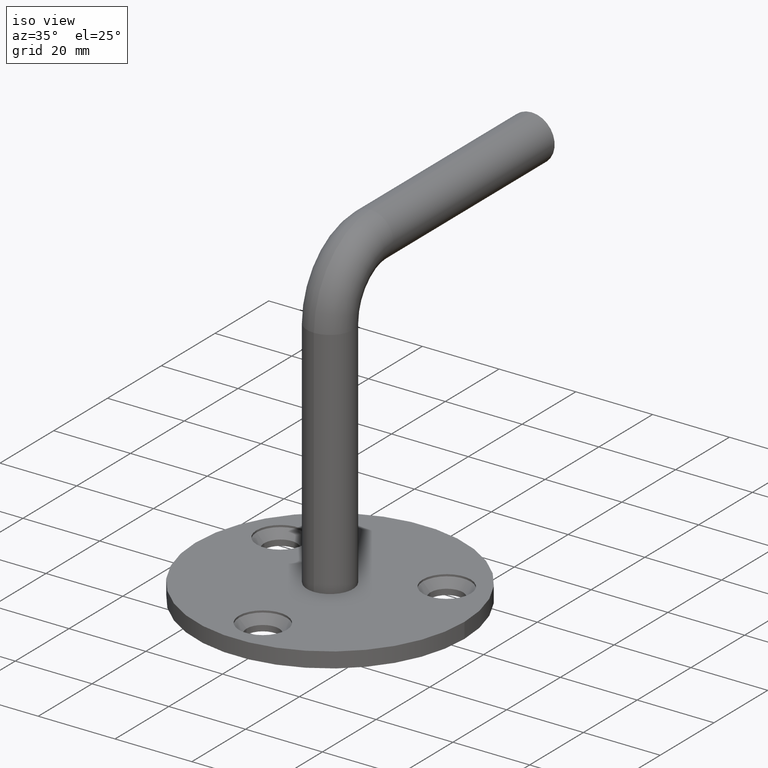
[diagram: clean part render]
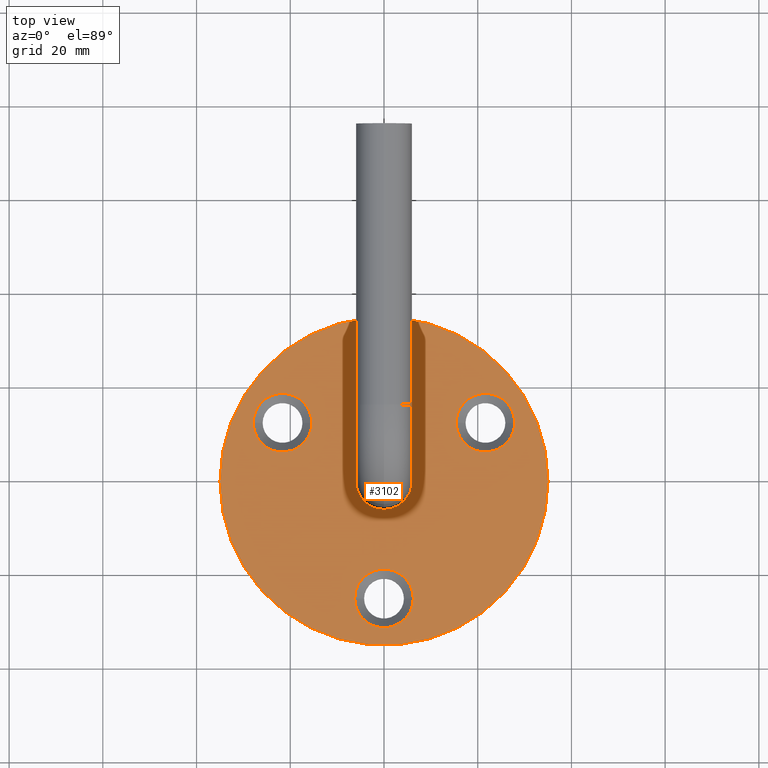
[diagram: tour spotlight — one face highlighted and labeled with its STEP entity id]
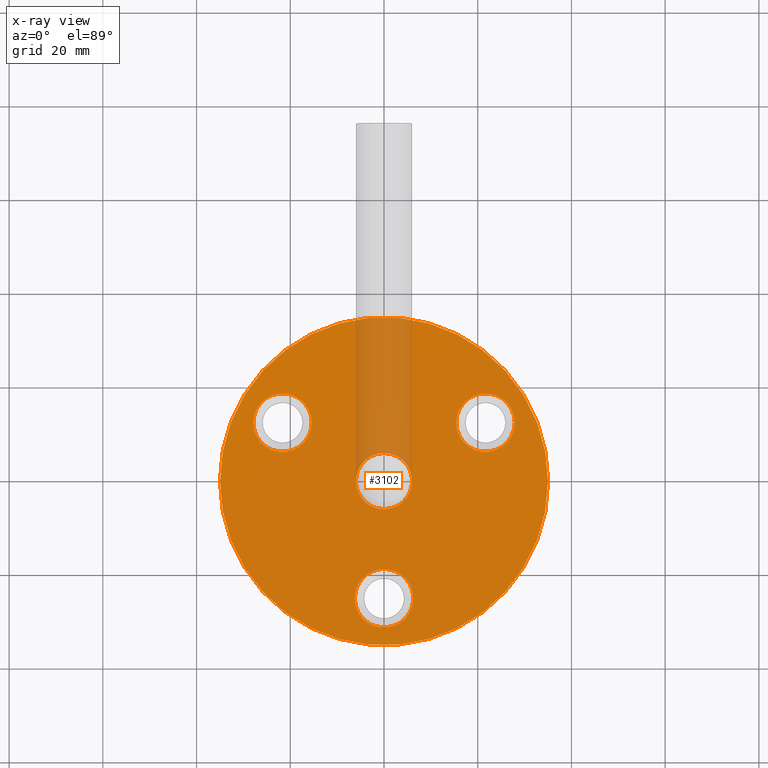
[diagram: x-ray of the same camera — body ghosted, this tour face saturated]
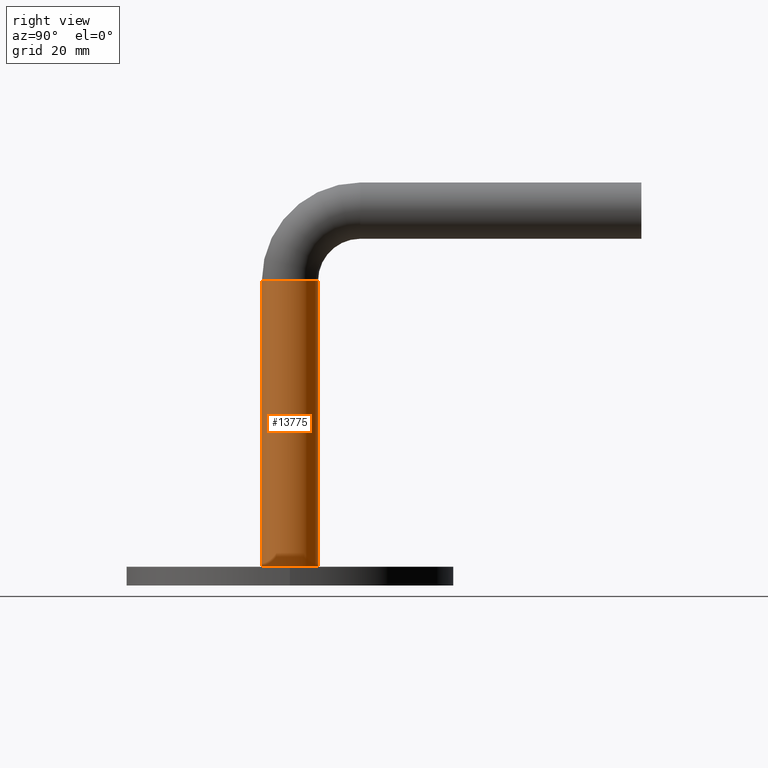
[diagram: tour spotlight — one face highlighted and labeled with its STEP entity id]
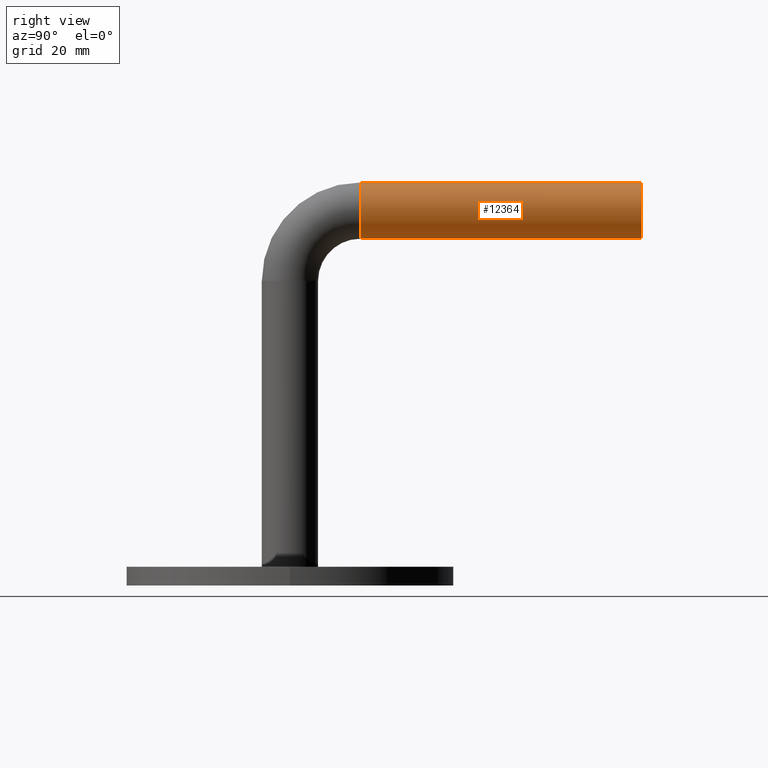
[diagram: tour spotlight — one face highlighted and labeled with its STEP entity id]
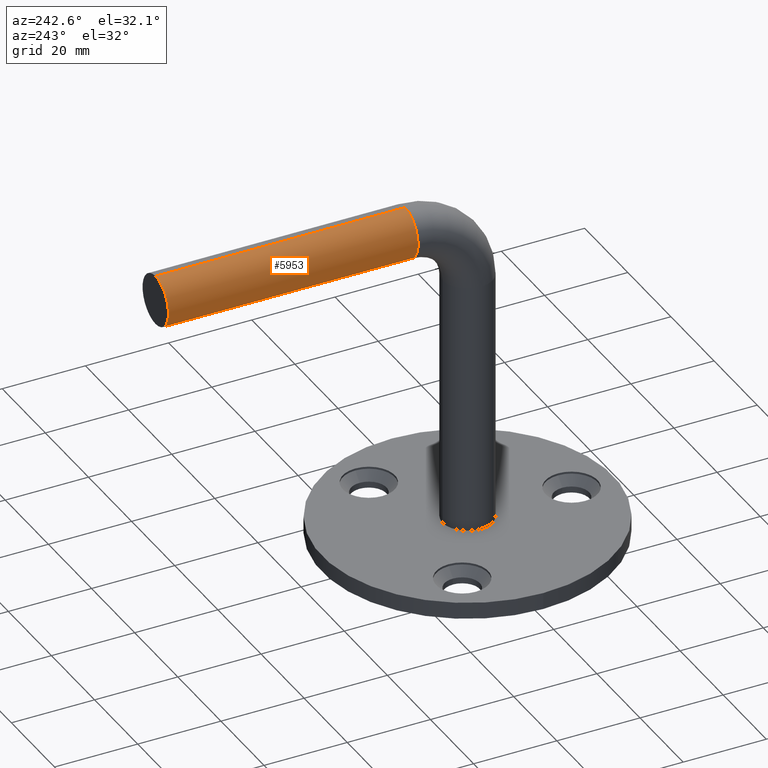
[diagram: tour spotlight — one face highlighted and labeled with its STEP entity id]
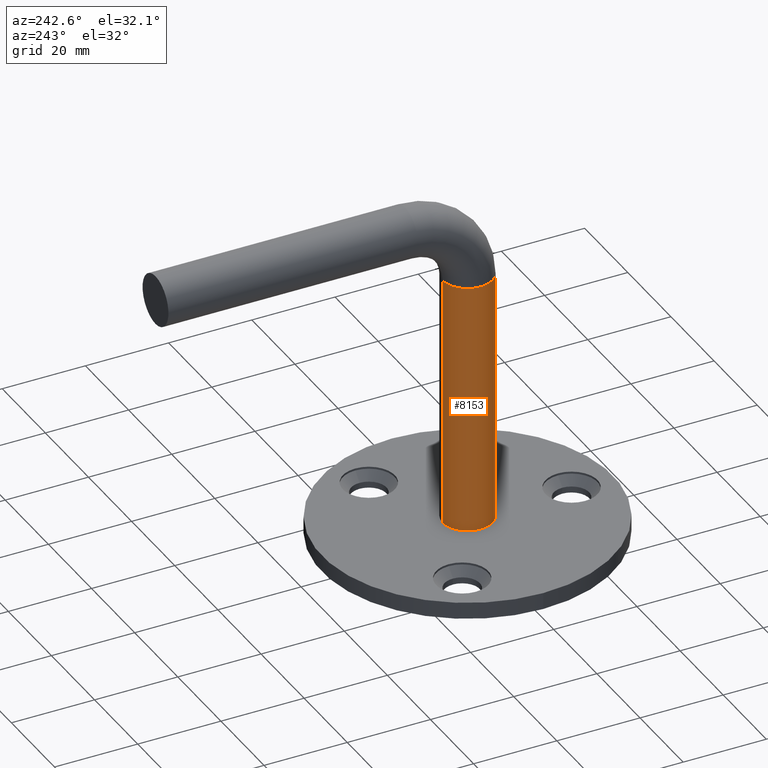
[diagram: tour spotlight — one face highlighted and labeled with its STEP entity id]
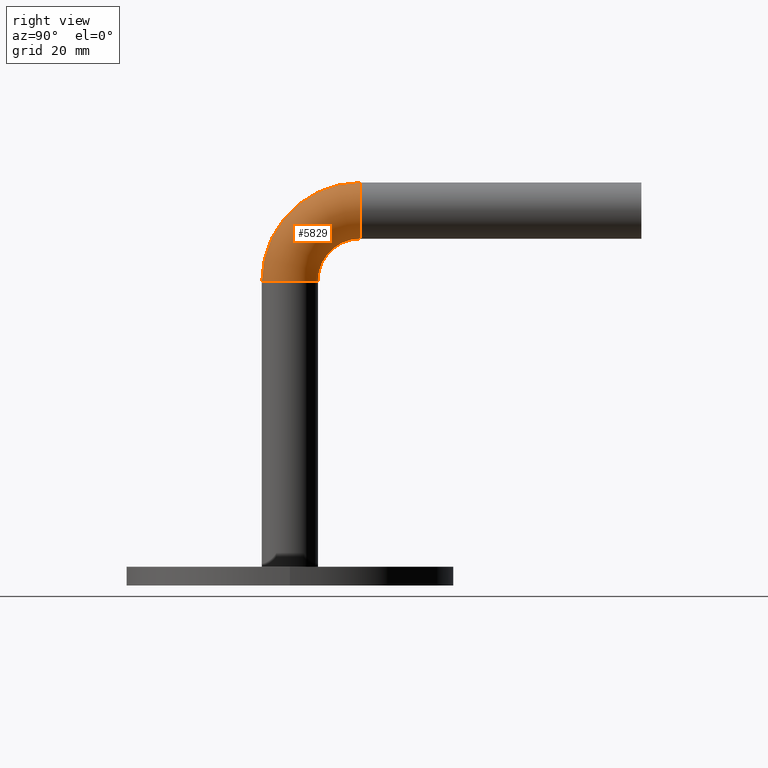
[diagram: tour spotlight — one face highlighted and labeled with its STEP entity id]
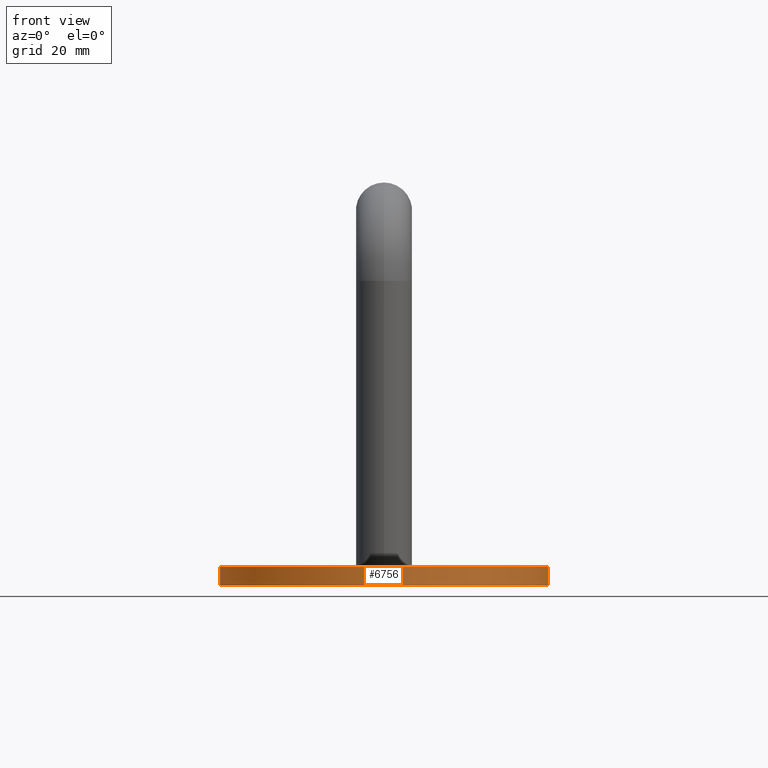
[diagram: tour spotlight — one face highlighted and labeled with its STEP entity id]
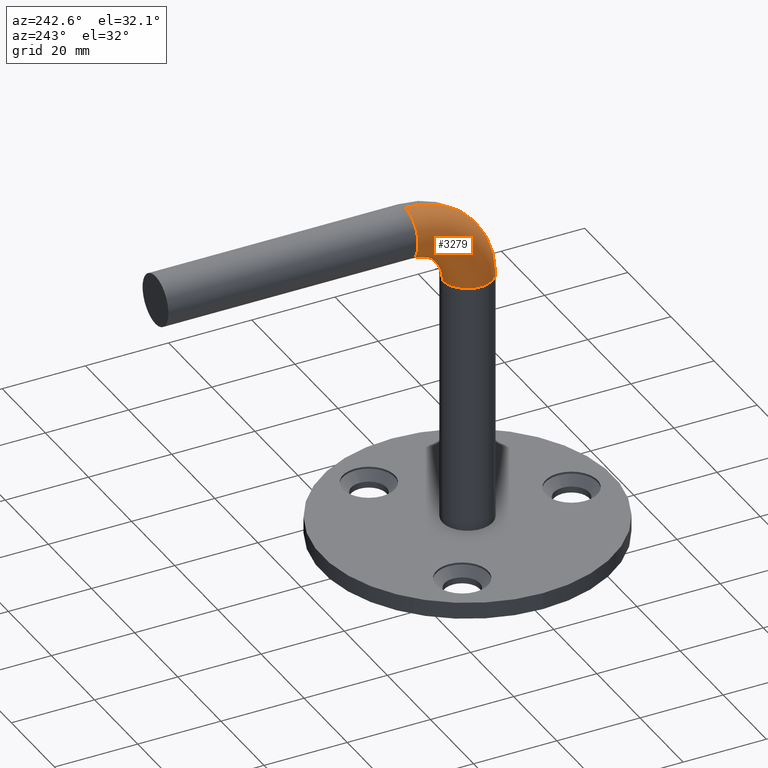
[diagram: tour spotlight — one face highlighted and labeled with its STEP entity id]
A machine part: a face-by-face anatomy tour. The part has 307 B-rep faces; the first image is the clean iso view, then the 8 largest visible faces are spotlighted one at a time (largest first), each with its STEP entity span.

Face 1 — top view, entity #3102. An x-ray twin of the same camera follows (body ghosted, this face saturated) — the face is partly hidden behind the body. In plain terms, the highlighted planar face has unit normal (0, 0, 1).
Definition (entity closure, byte-faithful):
#109 = ORIENTED_EDGE ( 'NONE', *, *, #8164, .F. ) ;
#196 = AXIS2_PLACEMENT_3D ( 'NONE', #7538, #14244, #12739 ) ;
#443 = ORIENTED_EDGE ( 'NONE', *, *, #6539, .T. ) ;
#508 = ORIENTED_EDGE ( 'NONE', *, *, #6605, .F. ) ;
#638 = DIRECTION ( 'NONE',  ( 0.000000000000000000, 0.000000000000000000, 1.000000000000000000 ) ) ;
#689 = CIRCLE ( 'NONE', #10230, 35.00000000000000711 ) ;
#1059 = CARTESIAN_POINT ( 'NONE',  ( 21.65063509461108993, 12.49999999999980282, 4.000000000000001776 ) ) ;
#1077 = CIRCLE ( 'NONE', #9009, 6.000000000000000888 ) ;
#1300 = CIRCLE ( 'NONE', #9657, 35.00000000000000711 ) ;
#1338 = VERTEX_POINT ( 'NONE', #4082 ) ;
#1596 = DIRECTION ( 'NONE',  ( -0.000000000000000000, -0.000000000000000000, 1.000000000000000000 ) ) ;
#1698 = AXIS2_PLACEMENT_3D ( 'NONE', #10444, #14485, #8972 ) ;
#1699 = CARTESIAN_POINT ( 'NONE',  ( -27.90063509461091229, 12.50000000000010481, 4.000000000000001776 ) ) ;
#1702 = CARTESIAN_POINT ( 'NONE',  ( -21.65063509461091584, 12.50000000000010481, 4.000000000000001776 ) ) ;
#1727 = CIRCLE ( 'NONE', #15725, 6.249999999999998224 ) ;
#2010 = AXIS2_PLACEMENT_3D ( 'NONE', #8440, #1596, #4267 ) ;
#2044 = DIRECTION ( 'NONE',  ( 1.000000000000000000, 0.000000000000000000, 0.000000000000000000 ) ) ;
#2189 = EDGE_LOOP ( 'NONE', ( #9227, #443 ) ) ;
#2321 = EDGE_CURVE ( 'NONE', #6848, #13100, #12137, .T. ) ;
#2519 = ORIENTED_EDGE ( 'NONE', *, *, #10115, .F. ) ;
#2582 = VERTEX_POINT ( 'NONE', #4131 ) ;
#2718 = ORIENTED_EDGE ( 'NONE', *, *, #2321, .F. ) ;
#2865 = CARTESIAN_POINT ( 'NONE',  ( 15.40063509461109348, 12.49999999999980282, 4.000000000000001776 ) ) ;
#3102 = ADVANCED_FACE ( 'NONE', ( #4572, #10876, #5192, #8161, #3926 ), #15530, .T. ) ;
#3601 = DIRECTION ( 'NONE',  ( 1.000000000000000000, 0.000000000000000000, 0.000000000000000000 ) ) ;
#3644 = CARTESIAN_POINT ( 'NONE',  ( 7.347880794884120722E-16, -6.000000000000001776, 4.000000000000003553 ) ) ;
#3826 = CIRCLE ( 'NONE', #2010, 6.249999999999998224 ) ;
#3926 = FACE_OUTER_BOUND ( 'NONE', #2189, .T. ) ;
#4082 = CARTESIAN_POINT ( 'NONE',  ( 27.90063509461108993, 12.49999999999980282, 4.000000000000001776 ) ) ;
#4131 = CARTESIAN_POINT ( 'NONE',  ( -6.249999999999998224, -25.00000000000000000, 4.000000000000001776 ) ) ;
#4235 = VERTEX_POINT ( 'NONE', #2865 ) ;
#4267 = DIRECTION ( 'NONE',  ( 1.000000000000000000, 0.000000000000000000, 0.000000000000000000 ) ) ;
#4572 = FACE_BOUND ( 'NONE', #15606, .T. ) ;
#5056 = DIRECTION ( 'NONE',  ( 1.000000000000000000, 0.000000000000000000, 0.000000000000000000 ) ) ;
#5192 = FACE_BOUND ( 'NONE', #11172, .T. ) ;
#5285 = ORIENTED_EDGE ( 'NONE', *, *, #10395, .F. ) ;
#5336 = DIRECTION ( 'NONE',  ( 0.000000000000000000, 0.000000000000000000, 1.000000000000000000 ) ) ;
#6435 = CARTESIAN_POINT ( 'NONE',  ( 0.000000000000000000, -4.898587196589417759E-16, 4.000000000000003553 ) ) ;
#6457 = CARTESIAN_POINT ( 'NONE',  ( 0.000000000000000000, 6.000000000000000888, 4.000000000000003553 ) ) ;
#6460 = DIRECTION ( 'NONE',  ( -0.000000000000000000, -0.000000000000000000, 1.000000000000000000 ) ) ;
#6539 = EDGE_CURVE ( 'NONE', #9144, #15118, #689, .T. ) ;
#6605 = EDGE_CURVE ( 'NONE', #4235, #1338, #1727, .T. ) ;
#6848 = VERTEX_POINT ( 'NONE', #1699 ) ;
#6897 = EDGE_CURVE ( 'NONE', #15118, #9144, #1300, .T. ) ;
#7141 = CARTESIAN_POINT ( 'NONE',  ( -15.40063509461091584, 12.50000000000010481, 4.000000000000001776 ) ) ;
#7538 = CARTESIAN_POINT ( 'NONE',  ( 0.000000000000000000, 0.000000000000000000, 4.000000000000000000 ) ) ;
#7759 = CARTESIAN_POINT ( 'NONE',  ( -21.65063509461091584, 12.50000000000010481, 4.000000000000001776 ) ) ;
#8009 = CIRCLE ( 'NONE', #16076, 6.249999999999998224 ) ;
#8012 = EDGE_LOOP ( 'NONE', ( #8805, #2718 ) ) ;
#8161 = FACE_BOUND ( 'NONE', #12925, .T. ) ;
#8164 = EDGE_CURVE ( 'NONE', #1338, #4235, #3826, .T. ) ;
#8190 = DIRECTION ( 'NONE',  ( -0.000000000000000000, -0.000000000000000000, 1.000000000000000000 ) ) ;
#8440 = CARTESIAN_POINT ( 'NONE',  ( 21.65063509461108993, 12.49999999999980282, 4.000000000000001776 ) ) ;
#8448 = CARTESIAN_POINT ( 'NONE',  ( -35.00000000000000711, 0.000000000000000000, 4.000000000000000000 ) ) ;
#8680 = VERTEX_POINT ( 'NONE', #3644 ) ;
#8776 = DIRECTION ( 'NONE',  ( -0.000000000000000000, -0.000000000000000000, 1.000000000000000000 ) ) ;
#8805 = ORIENTED_EDGE ( 'NONE', *, *, #14804, .F. ) ;
#8824 = CIRCLE ( 'NONE', #15275, 6.000000000000000888 ) ;
#8835 = CIRCLE ( 'NONE', #16207, 6.249999999999998224 ) ;
#8902 = DIRECTION ( 'NONE',  ( 1.000000000000000000, 0.000000000000000000, 0.000000000000000000 ) ) ;
#8972 = DIRECTION ( 'NONE',  ( 1.000000000000000000, 0.000000000000000000, 0.000000000000000000 ) ) ;
#9009 = AXIS2_PLACEMENT_3D ( 'NONE', #6435, #10402, #5056 ) ;
#9144 = VERTEX_POINT ( 'NONE', #14063 ) ;
#9227 = ORIENTED_EDGE ( 'NONE', *, *, #6897, .T. ) ;
#9657 = AXIS2_PLACEMENT_3D ( 'NONE', #10042, #638, #2044 ) ;
#10042 = CARTESIAN_POINT ( 'NONE',  ( 0.000000000000000000, 0.000000000000000000, 4.000000000000000000 ) ) ;
#10115 = EDGE_CURVE ( 'NONE', #8680, #16513, #8824, .T. ) ;
#10230 = AXIS2_PLACEMENT_3D ( 'NONE', #15509, #11711, #3601 ) ;
#10395 = EDGE_CURVE ( 'NONE', #2582, #12377, #8009, .T. ) ;
#10402 = DIRECTION ( 'NONE',  ( 0.000000000000000000, 0.000000000000000000, 1.000000000000000000 ) ) ;
#10444 = CARTESIAN_POINT ( 'NONE',  ( 0.000000000000000000, -25.00000000000000000, 4.000000000000001776 ) ) ;
#10482 = ORIENTED_EDGE ( 'NONE', *, *, #13321, .F. ) ;
#10712 = CARTESIAN_POINT ( 'NONE',  ( 6.249999999999998224, -25.00000000000000000, 4.000000000000001776 ) ) ;
#10876 = FACE_BOUND ( 'NONE', #8012, .T. ) ;
#11172 = EDGE_LOOP ( 'NONE', ( #15162, #5285 ) ) ;
#11594 = AXIS2_PLACEMENT_3D ( 'NONE', #7759, #6460, #16998 ) ;
#11711 = DIRECTION ( 'NONE',  ( 0.000000000000000000, 0.000000000000000000, 1.000000000000000000 ) ) ;
#12137 = CIRCLE ( 'NONE', #11594, 6.249999999999998224 ) ;
#12377 = VERTEX_POINT ( 'NONE', #10712 ) ;
#12739 = DIRECTION ( 'NONE',  ( 1.000000000000000000, 0.000000000000000000, -0.000000000000000000 ) ) ;
#12925 = EDGE_LOOP ( 'NONE', ( #10482, #2519 ) ) ;
#13100 = VERTEX_POINT ( 'NONE', #7141 ) ;
#13321 = EDGE_CURVE ( 'NONE', #16513, #8680, #1077, .T. ) ;
#14060 = CIRCLE ( 'NONE', #1698, 6.249999999999998224 ) ;
#14063 = CARTESIAN_POINT ( 'NONE',  ( 35.00000000000000711, 4.286263797015737285E-15, 4.000000000000000000 ) ) ;
#14244 = DIRECTION ( 'NONE',  ( 0.000000000000000000, 0.000000000000000000, 1.000000000000000000 ) ) ;
#14358 = CARTESIAN_POINT ( 'NONE',  ( 0.000000000000000000, -25.00000000000000000, 4.000000000000001776 ) ) ;
#14485 = DIRECTION ( 'NONE',  ( -0.000000000000000000, -0.000000000000000000, 1.000000000000000000 ) ) ;
#14579 = DIRECTION ( 'NONE',  ( 1.000000000000000000, 0.000000000000000000, 0.000000000000000000 ) ) ;
#14804 = EDGE_CURVE ( 'NONE', #13100, #6848, #8835, .T. ) ;
#15118 = VERTEX_POINT ( 'NONE', #8448 ) ;
#15162 = ORIENTED_EDGE ( 'NONE', *, *, #16118, .F. ) ;
#15275 = AXIS2_PLACEMENT_3D ( 'NONE', #17321, #5336, #16116 ) ;
#15509 = CARTESIAN_POINT ( 'NONE',  ( 0.000000000000000000, 0.000000000000000000, 4.000000000000000000 ) ) ;
#15530 = PLANE ( 'NONE',  #196 ) ;
#15606 = EDGE_LOOP ( 'NONE', ( #109, #508 ) ) ;
#15725 = AXIS2_PLACEMENT_3D ( 'NONE', #1059, #17214, #14579 ) ;
#16076 = AXIS2_PLACEMENT_3D ( 'NONE', #14358, #8776, #8902 ) ;
#16116 = DIRECTION ( 'NONE',  ( 1.000000000000000000, 0.000000000000000000, 0.000000000000000000 ) ) ;
#16118 = EDGE_CURVE ( 'NONE', #12377, #2582, #14060, .T. ) ;
#16207 = AXIS2_PLACEMENT_3D ( 'NONE', #1702, #8190, #16328 ) ;
#16328 = DIRECTION ( 'NONE',  ( 1.000000000000000000, 0.000000000000000000, 0.000000000000000000 ) ) ;
#16513 = VERTEX_POINT ( 'NONE', #6457 ) ;
#16998 = DIRECTION ( 'NONE',  ( 1.000000000000000000, 0.000000000000000000, 0.000000000000000000 ) ) ;
#17214 = DIRECTION ( 'NONE',  ( -0.000000000000000000, -0.000000000000000000, 1.000000000000000000 ) ) ;
#17321 = CARTESIAN_POINT ( 'NONE',  ( 0.000000000000000000, -4.898587196589417759E-16, 4.000000000000003553 ) ) ;

Face 2 — right view, entity #13775. In plain terms, the highlighted cylindrical surface (edge-blend (fillet) strip) has radius 6 mm, axis along (-0, 0, -1).
Definition (entity closure, byte-faithful):
#548 = AXIS2_PLACEMENT_3D ( 'NONE', #8908, #12105, #9439 ) ;
#557 = DIRECTION ( 'NONE',  ( -0.000000000000000000, 1.224646799147353454E-16, -1.000000000000000000 ) ) ;
#1627 = EDGE_CURVE ( 'NONE', #12183, #13054, #3534, .T. ) ;
#1893 = EDGE_CURVE ( 'NONE', #12183, #16513, #10688, .T. ) ;
#2886 = DIRECTION ( 'NONE',  ( -0.000000000000000000, 1.224646799147353454E-16, -1.000000000000000000 ) ) ;
#3196 = CARTESIAN_POINT ( 'NONE',  ( 0.000000000000000000, -7.960204194457784630E-15, 64.99999999999988631 ) ) ;
#3534 = CIRCLE ( 'NONE', #548, 6.000000000000000888 ) ;
#3644 = CARTESIAN_POINT ( 'NONE',  ( 7.347880794884120722E-16, -6.000000000000001776, 4.000000000000003553 ) ) ;
#4241 = FACE_OUTER_BOUND ( 'NONE', #11848, .T. ) ;
#4843 = ORIENTED_EDGE ( 'NONE', *, *, #1893, .F. ) ;
#5336 = DIRECTION ( 'NONE',  ( 0.000000000000000000, 0.000000000000000000, 1.000000000000000000 ) ) ;
#6242 = DIRECTION ( 'NONE',  ( -0.000000000000000000, 1.224646799147353454E-16, -1.000000000000000000 ) ) ;
#6457 = CARTESIAN_POINT ( 'NONE',  ( 0.000000000000000000, 6.000000000000000888, 4.000000000000003553 ) ) ;
#8516 = CARTESIAN_POINT ( 'NONE',  ( 0.000000000000000000, 5.999999999999992895, 64.99999999999988631 ) ) ;
#8536 = CARTESIAN_POINT ( 'NONE',  ( 7.347880794884124666E-16, -6.000000000000009770, 64.99999999999988631 ) ) ;
#8589 = VECTOR ( 'NONE', #2886, 1000.000000000000000 ) ;
#8680 = VERTEX_POINT ( 'NONE', #3644 ) ;
#8824 = CIRCLE ( 'NONE', #15275, 6.000000000000000888 ) ;
#8908 = CARTESIAN_POINT ( 'NONE',  ( 0.000000000000000000, -7.960204194457784630E-15, 64.99999999999988631 ) ) ;
#9117 = ORIENTED_EDGE ( 'NONE', *, *, #1627, .T. ) ;
#9267 = CYLINDRICAL_SURFACE ( 'NONE', #14417, 6.000000000000000888 ) ;
#9439 = DIRECTION ( 'NONE',  ( -1.000000000000000000, 0.000000000000000000, 0.000000000000000000 ) ) ;
#10115 = EDGE_CURVE ( 'NONE', #8680, #16513, #8824, .T. ) ;
#10688 = LINE ( 'NONE', #14481, #11740 ) ;
#11740 = VECTOR ( 'NONE', #6242, 1000.000000000000000 ) ;
#11848 = EDGE_LOOP ( 'NONE', ( #9117, #15052, #16809, #4843 ) ) ;
#12105 = DIRECTION ( 'NONE',  ( 0.000000000000000000, 0.000000000000000000, -1.000000000000000000 ) ) ;
#12183 = VERTEX_POINT ( 'NONE', #8516 ) ;
#12585 = LINE ( 'NONE', #16098, #8589 ) ;
#12603 = DIRECTION ( 'NONE',  ( 0.000000000000000000, 1.000000000000000000, 0.000000000000000000 ) ) ;
#13054 = VERTEX_POINT ( 'NONE', #8536 ) ;
#13775 = ADVANCED_FACE ( 'NONE', ( #4241 ), #9267, .T. ) ;
#14417 = AXIS2_PLACEMENT_3D ( 'NONE', #3196, #557, #12603 ) ;
#14481 = CARTESIAN_POINT ( 'NONE',  ( 0.000000000000000000, 5.999999999999992895, 64.99999999999988631 ) ) ;
#15052 = ORIENTED_EDGE ( 'NONE', *, *, #17390, .T. ) ;
#15275 = AXIS2_PLACEMENT_3D ( 'NONE', #17321, #5336, #16116 ) ;
#16098 = CARTESIAN_POINT ( 'NONE',  ( 7.347880794884120722E-16, -6.000000000000008882, 64.99999999999988631 ) ) ;
#16116 = DIRECTION ( 'NONE',  ( 1.000000000000000000, 0.000000000000000000, 0.000000000000000000 ) ) ;
#16513 = VERTEX_POINT ( 'NONE', #6457 ) ;
#16809 = ORIENTED_EDGE ( 'NONE', *, *, #10115, .T. ) ;
#17321 = CARTESIAN_POINT ( 'NONE',  ( 0.000000000000000000, -4.898587196589417759E-16, 4.000000000000003553 ) ) ;
#17390 = EDGE_CURVE ( 'NONE', #13054, #8680, #12585, .T. ) ;

Face 3 — right view, entity #12364. In plain terms, the highlighted cylindrical surface (edge-blend (fillet) strip) has radius 6 mm, axis along (0, 1, 0).
Definition (entity closure, byte-faithful):
#670 = LINE ( 'NONE', #4469, #8050 ) ;
#819 = EDGE_CURVE ( 'NONE', #15976, #16265, #4601, .T. ) ;
#1736 = VERTEX_POINT ( 'NONE', #7131 ) ;
#1914 = CARTESIAN_POINT ( 'NONE',  ( 0.000000000000000000, 15.00000000000009592, 86.00000000000000000 ) ) ;
#2487 = DIRECTION ( 'NONE',  ( 0.000000000000000000, -1.000000000000000000, 1.437166698016966745E-14 ) ) ;
#2697 = VECTOR ( 'NONE', #11322, 1000.000000000000000 ) ;
#3159 = DIRECTION ( 'NONE',  ( 0.000000000000000000, 1.000000000000000000, 0.000000000000000000 ) ) ;
#3221 = EDGE_CURVE ( 'NONE', #1736, #15976, #12343, .T. ) ;
#3916 = CARTESIAN_POINT ( 'NONE',  ( 0.000000000000000000, 75.00000000000007105, 86.00000000000000000 ) ) ;
#4354 = EDGE_CURVE ( 'NONE', #1736, #13428, #670, .T. ) ;
#4373 = AXIS2_PLACEMENT_3D ( 'NONE', #10549, #2487, #17007 ) ;
#4398 = CARTESIAN_POINT ( 'NONE',  ( 0.000000000000000000, 15.00000000000018296, 86.00000000000000000 ) ) ;
#4469 = CARTESIAN_POINT ( 'NONE',  ( 7.347880794884120722E-16, 15.00000000000009592, 74.00000000000000000 ) ) ;
#4601 = LINE ( 'NONE', #1914, #2697 ) ;
#5417 = DIRECTION ( 'NONE',  ( 0.000000000000000000, -1.000000000000000000, 1.437166698016966745E-14 ) ) ;
#6733 = ORIENTED_EDGE ( 'NONE', *, *, #3221, .F. ) ;
#6802 = DIRECTION ( 'NONE',  ( -1.000000000000000000, 0.000000000000000000, 0.000000000000000000 ) ) ;
#7018 = AXIS2_PLACEMENT_3D ( 'NONE', #7879, #17303, #9176 ) ;
#7131 = CARTESIAN_POINT ( 'NONE',  ( 7.347880794884114806E-16, 15.00000000000001066, 74.00000000000000000 ) ) ;
#7879 = CARTESIAN_POINT ( 'NONE',  ( 0.000000000000000000, 15.00000000000009592, 80.00000000000000000 ) ) ;
#8050 = VECTOR ( 'NONE', #3159, 1000.000000000000000 ) ;
#9176 = DIRECTION ( 'NONE',  ( 0.000000000000000000, 0.000000000000000000, 1.000000000000000000 ) ) ;
#9206 = CIRCLE ( 'NONE', #16097, 6.000000000000000888 ) ;
#9283 = CYLINDRICAL_SURFACE ( 'NONE', #7018, 6.000000000000005329 ) ;
#10446 = ORIENTED_EDGE ( 'NONE', *, *, #16644, .T. ) ;
#10549 = CARTESIAN_POINT ( 'NONE',  ( 0.000000000000000000, 15.00000000000009592, 80.00000000000000000 ) ) ;
#11322 = DIRECTION ( 'NONE',  ( 0.000000000000000000, 1.000000000000000000, 0.000000000000000000 ) ) ;
#12343 = CIRCLE ( 'NONE', #4373, 6.000000000000000888 ) ;
#12364 = ADVANCED_FACE ( 'NONE', ( #12464 ), #9283, .T. ) ;
#12464 = FACE_OUTER_BOUND ( 'NONE', #15032, .T. ) ;
#13428 = VERTEX_POINT ( 'NONE', #16539 ) ;
#14568 = ORIENTED_EDGE ( 'NONE', *, *, #4354, .T. ) ;
#14720 = ORIENTED_EDGE ( 'NONE', *, *, #819, .F. ) ;
#14808 = CARTESIAN_POINT ( 'NONE',  ( 0.000000000000000000, 74.99999999999998579, 80.00000000000000000 ) ) ;
#15032 = EDGE_LOOP ( 'NONE', ( #6733, #14568, #10446, #14720 ) ) ;
#15976 = VERTEX_POINT ( 'NONE', #4398 ) ;
#16097 = AXIS2_PLACEMENT_3D ( 'NONE', #14808, #5417, #6802 ) ;
#16265 = VERTEX_POINT ( 'NONE', #3916 ) ;
#16539 = CARTESIAN_POINT ( 'NONE',  ( 7.347880794884114806E-16, 74.99999999999990052, 74.00000000000000000 ) ) ;
#16644 = EDGE_CURVE ( 'NONE', #13428, #16265, #9206, .T. ) ;
#17007 = DIRECTION ( 'NONE',  ( -1.000000000000000000, 0.000000000000000000, 0.000000000000000000 ) ) ;
#17303 = DIRECTION ( 'NONE',  ( 0.000000000000000000, 1.000000000000000000, 0.000000000000000000 ) ) ;

Face 4 — auxiliary view, entity #5953. In plain terms, the highlighted cylindrical surface (edge-blend (fillet) strip) has radius 6 mm, axis along (0, 1, 0).
Definition (entity closure, byte-faithful):
#78 = DIRECTION ( 'NONE',  ( 0.000000000000000000, -1.000000000000000000, 1.437166698016966745E-14 ) ) ;
#670 = LINE ( 'NONE', #4469, #8050 ) ;
#819 = EDGE_CURVE ( 'NONE', #15976, #16265, #4601, .T. ) ;
#1230 = EDGE_CURVE ( 'NONE', #16265, #13428, #15302, .T. ) ;
#1736 = VERTEX_POINT ( 'NONE', #7131 ) ;
#1914 = CARTESIAN_POINT ( 'NONE',  ( 0.000000000000000000, 15.00000000000009592, 86.00000000000000000 ) ) ;
#2124 = CIRCLE ( 'NONE', #10592, 6.000000000000000888 ) ;
#2632 = ORIENTED_EDGE ( 'NONE', *, *, #819, .T. ) ;
#2697 = VECTOR ( 'NONE', #11322, 1000.000000000000000 ) ;
#3159 = DIRECTION ( 'NONE',  ( 0.000000000000000000, 1.000000000000000000, 0.000000000000000000 ) ) ;
#3647 = FACE_OUTER_BOUND ( 'NONE', #12071, .T. ) ;
#3916 = CARTESIAN_POINT ( 'NONE',  ( 0.000000000000000000, 75.00000000000007105, 86.00000000000000000 ) ) ;
#4354 = EDGE_CURVE ( 'NONE', #1736, #13428, #670, .T. ) ;
#4398 = CARTESIAN_POINT ( 'NONE',  ( 0.000000000000000000, 15.00000000000018296, 86.00000000000000000 ) ) ;
#4469 = CARTESIAN_POINT ( 'NONE',  ( 7.347880794884120722E-16, 15.00000000000009592, 74.00000000000000000 ) ) ;
#4590 = AXIS2_PLACEMENT_3D ( 'NONE', #9497, #10679, #16180 ) ;
#4601 = LINE ( 'NONE', #1914, #2697 ) ;
#5496 = DIRECTION ( 'NONE',  ( -1.000000000000000000, 0.000000000000000000, 0.000000000000000000 ) ) ;
#5953 = ADVANCED_FACE ( 'NONE', ( #3647 ), #17098, .T. ) ;
#7131 = CARTESIAN_POINT ( 'NONE',  ( 7.347880794884114806E-16, 15.00000000000001066, 74.00000000000000000 ) ) ;
#7228 = ORIENTED_EDGE ( 'NONE', *, *, #13919, .F. ) ;
#7572 = DIRECTION ( 'NONE',  ( 0.000000000000000000, -1.000000000000000000, 1.437166698016966745E-14 ) ) ;
#8050 = VECTOR ( 'NONE', #3159, 1000.000000000000000 ) ;
#8422 = ORIENTED_EDGE ( 'NONE', *, *, #4354, .F. ) ;
#8711 = ORIENTED_EDGE ( 'NONE', *, *, #1230, .T. ) ;
#9497 = CARTESIAN_POINT ( 'NONE',  ( 0.000000000000000000, 15.00000000000009592, 80.00000000000000000 ) ) ;
#10592 = AXIS2_PLACEMENT_3D ( 'NONE', #14287, #7572, #16937 ) ;
#10679 = DIRECTION ( 'NONE',  ( 0.000000000000000000, 1.000000000000000000, 0.000000000000000000 ) ) ;
#11322 = DIRECTION ( 'NONE',  ( 0.000000000000000000, 1.000000000000000000, 0.000000000000000000 ) ) ;
#12029 = AXIS2_PLACEMENT_3D ( 'NONE', #13304, #78, #5496 ) ;
#12071 = EDGE_LOOP ( 'NONE', ( #8422, #7228, #2632, #8711 ) ) ;
#13304 = CARTESIAN_POINT ( 'NONE',  ( 0.000000000000000000, 74.99999999999998579, 80.00000000000000000 ) ) ;
#13428 = VERTEX_POINT ( 'NONE', #16539 ) ;
#13919 = EDGE_CURVE ( 'NONE', #15976, #1736, #2124, .T. ) ;
#14287 = CARTESIAN_POINT ( 'NONE',  ( 0.000000000000000000, 15.00000000000009592, 80.00000000000000000 ) ) ;
#15302 = CIRCLE ( 'NONE', #12029, 6.000000000000000888 ) ;
#15976 = VERTEX_POINT ( 'NONE', #4398 ) ;
#16180 = DIRECTION ( 'NONE',  ( 0.000000000000000000, 0.000000000000000000, 1.000000000000000000 ) ) ;
#16265 = VERTEX_POINT ( 'NONE', #3916 ) ;
#16539 = CARTESIAN_POINT ( 'NONE',  ( 7.347880794884114806E-16, 74.99999999999990052, 74.00000000000000000 ) ) ;
#16937 = DIRECTION ( 'NONE',  ( -1.000000000000000000, 0.000000000000000000, 0.000000000000000000 ) ) ;
#17098 = CYLINDRICAL_SURFACE ( 'NONE', #4590, 6.000000000000005329 ) ;

Face 5 — auxiliary view, entity #8153. In plain terms, the highlighted cylindrical surface (edge-blend (fillet) strip) has radius 6 mm, axis along (-0, 0, -1).
Definition (entity closure, byte-faithful):
#119 = DIRECTION ( 'NONE',  ( 0.000000000000000000, 0.000000000000000000, -1.000000000000000000 ) ) ;
#1077 = CIRCLE ( 'NONE', #9009, 6.000000000000000888 ) ;
#1483 = CARTESIAN_POINT ( 'NONE',  ( 0.000000000000000000, -7.960204194457784630E-15, 64.99999999999988631 ) ) ;
#1893 = EDGE_CURVE ( 'NONE', #12183, #16513, #10688, .T. ) ;
#2886 = DIRECTION ( 'NONE',  ( -0.000000000000000000, 1.224646799147353454E-16, -1.000000000000000000 ) ) ;
#2893 = DIRECTION ( 'NONE',  ( 0.000000000000000000, 1.000000000000000000, 0.000000000000000000 ) ) ;
#3128 = ORIENTED_EDGE ( 'NONE', *, *, #13321, .T. ) ;
#3644 = CARTESIAN_POINT ( 'NONE',  ( 7.347880794884120722E-16, -6.000000000000001776, 4.000000000000003553 ) ) ;
#4676 = CYLINDRICAL_SURFACE ( 'NONE', #5624, 6.000000000000000888 ) ;
#4688 = EDGE_LOOP ( 'NONE', ( #8443, #5166, #15793, #3128 ) ) ;
#5056 = DIRECTION ( 'NONE',  ( 1.000000000000000000, 0.000000000000000000, 0.000000000000000000 ) ) ;
#5166 = ORIENTED_EDGE ( 'NONE', *, *, #14813, .T. ) ;
#5502 = DIRECTION ( 'NONE',  ( -0.000000000000000000, 1.224646799147353454E-16, -1.000000000000000000 ) ) ;
#5624 = AXIS2_PLACEMENT_3D ( 'NONE', #1483, #5502, #2893 ) ;
#6242 = DIRECTION ( 'NONE',  ( -0.000000000000000000, 1.224646799147353454E-16, -1.000000000000000000 ) ) ;
#6435 = CARTESIAN_POINT ( 'NONE',  ( 0.000000000000000000, -4.898587196589417759E-16, 4.000000000000003553 ) ) ;
#6457 = CARTESIAN_POINT ( 'NONE',  ( 0.000000000000000000, 6.000000000000000888, 4.000000000000003553 ) ) ;
#6558 = CIRCLE ( 'NONE', #15873, 6.000000000000000888 ) ;
#8153 = ADVANCED_FACE ( 'NONE', ( #9081 ), #4676, .T. ) ;
#8443 = ORIENTED_EDGE ( 'NONE', *, *, #17390, .F. ) ;
#8516 = CARTESIAN_POINT ( 'NONE',  ( 0.000000000000000000, 5.999999999999992895, 64.99999999999988631 ) ) ;
#8536 = CARTESIAN_POINT ( 'NONE',  ( 7.347880794884124666E-16, -6.000000000000009770, 64.99999999999988631 ) ) ;
#8589 = VECTOR ( 'NONE', #2886, 1000.000000000000000 ) ;
#8680 = VERTEX_POINT ( 'NONE', #3644 ) ;
#9009 = AXIS2_PLACEMENT_3D ( 'NONE', #6435, #10402, #5056 ) ;
#9081 = FACE_OUTER_BOUND ( 'NONE', #4688, .T. ) ;
#10402 = DIRECTION ( 'NONE',  ( 0.000000000000000000, 0.000000000000000000, 1.000000000000000000 ) ) ;
#10688 = LINE ( 'NONE', #14481, #11740 ) ;
#11740 = VECTOR ( 'NONE', #6242, 1000.000000000000000 ) ;
#12183 = VERTEX_POINT ( 'NONE', #8516 ) ;
#12299 = DIRECTION ( 'NONE',  ( -1.000000000000000000, 0.000000000000000000, 0.000000000000000000 ) ) ;
#12407 = CARTESIAN_POINT ( 'NONE',  ( 0.000000000000000000, -7.960204194457784630E-15, 64.99999999999988631 ) ) ;
#12585 = LINE ( 'NONE', #16098, #8589 ) ;
#13054 = VERTEX_POINT ( 'NONE', #8536 ) ;
#13321 = EDGE_CURVE ( 'NONE', #16513, #8680, #1077, .T. ) ;
#14481 = CARTESIAN_POINT ( 'NONE',  ( 0.000000000000000000, 5.999999999999992895, 64.99999999999988631 ) ) ;
#14813 = EDGE_CURVE ( 'NONE', #13054, #12183, #6558, .T. ) ;
#15793 = ORIENTED_EDGE ( 'NONE', *, *, #1893, .T. ) ;
#15873 = AXIS2_PLACEMENT_3D ( 'NONE', #12407, #119, #12299 ) ;
#16098 = CARTESIAN_POINT ( 'NONE',  ( 7.347880794884120722E-16, -6.000000000000008882, 64.99999999999988631 ) ) ;
#16513 = VERTEX_POINT ( 'NONE', #6457 ) ;
#17390 = EDGE_CURVE ( 'NONE', #13054, #8680, #12585, .T. ) ;

Face 6 — right view, entity #5829. In plain terms, the highlighted toroidal blend (fillet) surface has major radius 15 mm and minor (blend) radius 6 mm.
Definition (entity closure, byte-faithful):
#548 = AXIS2_PLACEMENT_3D ( 'NONE', #8908, #12105, #9439 ) ;
#876 = CARTESIAN_POINT ( 'NONE',  ( 0.000000000000000000, 14.99999999999999112, 65.00000000000000000 ) ) ;
#1506 = CIRCLE ( 'NONE', #4953, 21.00000000000000355 ) ;
#1627 = EDGE_CURVE ( 'NONE', #12183, #13054, #3534, .T. ) ;
#1736 = VERTEX_POINT ( 'NONE', #7131 ) ;
#1896 = ORIENTED_EDGE ( 'NONE', *, *, #3221, .T. ) ;
#2487 = DIRECTION ( 'NONE',  ( 0.000000000000000000, -1.000000000000000000, 1.437166698016966745E-14 ) ) ;
#2588 = TOROIDAL_SURFACE ( 'NONE', #8214, 15.00000000000000000, 6.000000000000000888 ) ;
#3221 = EDGE_CURVE ( 'NONE', #1736, #15976, #12343, .T. ) ;
#3283 = DIRECTION ( 'NONE',  ( 0.000000000000000000, 0.000000000000000000, 1.000000000000000000 ) ) ;
#3534 = CIRCLE ( 'NONE', #548, 6.000000000000000888 ) ;
#4164 = EDGE_CURVE ( 'NONE', #13054, #15976, #1506, .T. ) ;
#4373 = AXIS2_PLACEMENT_3D ( 'NONE', #10549, #2487, #17007 ) ;
#4398 = CARTESIAN_POINT ( 'NONE',  ( 0.000000000000000000, 15.00000000000018296, 86.00000000000000000 ) ) ;
#4953 = AXIS2_PLACEMENT_3D ( 'NONE', #16196, #16317, #10995 ) ;
#5829 = ADVANCED_FACE ( 'NONE', ( #12493 ), #2588, .T. ) ;
#6601 = CIRCLE ( 'NONE', #11723, 8.999999999999994671 ) ;
#6953 = ORIENTED_EDGE ( 'NONE', *, *, #1627, .F. ) ;
#7131 = CARTESIAN_POINT ( 'NONE',  ( 7.347880794884114806E-16, 15.00000000000001066, 74.00000000000000000 ) ) ;
#7270 = DIRECTION ( 'NONE',  ( 0.000000000000000000, 0.000000000000000000, 1.000000000000000000 ) ) ;
#7377 = CARTESIAN_POINT ( 'NONE',  ( 7.347880794884120722E-16, 14.99999999999999112, 65.00000000000000000 ) ) ;
#8214 = AXIS2_PLACEMENT_3D ( 'NONE', #876, #10222, #3283 ) ;
#8478 = DIRECTION ( 'NONE',  ( -1.000000000000000000, -0.000000000000000000, 0.000000000000000000 ) ) ;
#8516 = CARTESIAN_POINT ( 'NONE',  ( 0.000000000000000000, 5.999999999999992895, 64.99999999999988631 ) ) ;
#8536 = CARTESIAN_POINT ( 'NONE',  ( 7.347880794884124666E-16, -6.000000000000009770, 64.99999999999988631 ) ) ;
#8908 = CARTESIAN_POINT ( 'NONE',  ( 0.000000000000000000, -7.960204194457784630E-15, 64.99999999999988631 ) ) ;
#9439 = DIRECTION ( 'NONE',  ( -1.000000000000000000, 0.000000000000000000, 0.000000000000000000 ) ) ;
#10222 = DIRECTION ( 'NONE',  ( -1.000000000000000000, -0.000000000000000000, 0.000000000000000000 ) ) ;
#10549 = CARTESIAN_POINT ( 'NONE',  ( 0.000000000000000000, 15.00000000000009592, 80.00000000000000000 ) ) ;
#10995 = DIRECTION ( 'NONE',  ( 0.000000000000000000, 0.000000000000000000, 1.000000000000000000 ) ) ;
#11723 = AXIS2_PLACEMENT_3D ( 'NONE', #7377, #8478, #7270 ) ;
#12105 = DIRECTION ( 'NONE',  ( 0.000000000000000000, 0.000000000000000000, -1.000000000000000000 ) ) ;
#12183 = VERTEX_POINT ( 'NONE', #8516 ) ;
#12343 = CIRCLE ( 'NONE', #4373, 6.000000000000000888 ) ;
#12493 = FACE_OUTER_BOUND ( 'NONE', #13103, .T. ) ;
#13016 = EDGE_CURVE ( 'NONE', #12183, #1736, #6601, .T. ) ;
#13054 = VERTEX_POINT ( 'NONE', #8536 ) ;
#13103 = EDGE_LOOP ( 'NONE', ( #14364, #6953, #14158, #1896 ) ) ;
#14158 = ORIENTED_EDGE ( 'NONE', *, *, #13016, .T. ) ;
#14364 = ORIENTED_EDGE ( 'NONE', *, *, #4164, .F. ) ;
#15976 = VERTEX_POINT ( 'NONE', #4398 ) ;
#16196 = CARTESIAN_POINT ( 'NONE',  ( 0.000000000000000000, 14.99999999999999112, 65.00000000000000000 ) ) ;
#16317 = DIRECTION ( 'NONE',  ( -1.000000000000000000, -0.000000000000000000, 0.000000000000000000 ) ) ;
#17007 = DIRECTION ( 'NONE',  ( -1.000000000000000000, 0.000000000000000000, 0.000000000000000000 ) ) ;

Face 7 — front view, entity #6756. In plain terms, the highlighted cylindrical surface (partial cylindrical patch) has radius 35 mm, axis along (-0, -0, -1).
Definition (entity closure, byte-faithful):
#638 = DIRECTION ( 'NONE',  ( 0.000000000000000000, 0.000000000000000000, 1.000000000000000000 ) ) ;
#840 = ORIENTED_EDGE ( 'NONE', *, *, #6927, .T. ) ;
#1200 = AXIS2_PLACEMENT_3D ( 'NONE', #16620, #1866, #4582 ) ;
#1284 = LINE ( 'NONE', #9489, #8047 ) ;
#1300 = CIRCLE ( 'NONE', #9657, 35.00000000000000711 ) ;
#1375 = DIRECTION ( 'NONE',  ( -0.000000000000000000, -0.000000000000000000, -1.000000000000000000 ) ) ;
#1866 = DIRECTION ( 'NONE',  ( 0.000000000000000000, 0.000000000000000000, 1.000000000000000000 ) ) ;
#1879 = AXIS2_PLACEMENT_3D ( 'NONE', #13576, #14745, #16139 ) ;
#2044 = DIRECTION ( 'NONE',  ( 1.000000000000000000, 0.000000000000000000, 0.000000000000000000 ) ) ;
#2797 = VERTEX_POINT ( 'NONE', #12531 ) ;
#3576 = EDGE_CURVE ( 'NONE', #15118, #5303, #9605, .T. ) ;
#4582 = DIRECTION ( 'NONE',  ( 1.000000000000000000, 0.000000000000000000, 0.000000000000000000 ) ) ;
#5303 = VERTEX_POINT ( 'NONE', #12305 ) ;
#5749 = CYLINDRICAL_SURFACE ( 'NONE', #1879, 35.00000000000000711 ) ;
#6060 = VECTOR ( 'NONE', #10072, 1000.000000000000000 ) ;
#6355 = ORIENTED_EDGE ( 'NONE', *, *, #3576, .T. ) ;
#6756 = ADVANCED_FACE ( 'NONE', ( #16012 ), #5749, .T. ) ;
#6897 = EDGE_CURVE ( 'NONE', #15118, #9144, #1300, .T. ) ;
#6927 = EDGE_CURVE ( 'NONE', #5303, #2797, #10773, .T. ) ;
#8047 = VECTOR ( 'NONE', #1375, 1000.000000000000000 ) ;
#8448 = CARTESIAN_POINT ( 'NONE',  ( -35.00000000000000711, 0.000000000000000000, 4.000000000000000000 ) ) ;
#8974 = EDGE_CURVE ( 'NONE', #9144, #2797, #1284, .T. ) ;
#9144 = VERTEX_POINT ( 'NONE', #14063 ) ;
#9489 = CARTESIAN_POINT ( 'NONE',  ( 35.00000000000000711, 4.286263797015737285E-15, 4.000000000000000000 ) ) ;
#9605 = LINE ( 'NONE', #12778, #6060 ) ;
#9657 = AXIS2_PLACEMENT_3D ( 'NONE', #10042, #638, #2044 ) ;
#10042 = CARTESIAN_POINT ( 'NONE',  ( 0.000000000000000000, 0.000000000000000000, 4.000000000000000000 ) ) ;
#10072 = DIRECTION ( 'NONE',  ( -0.000000000000000000, -0.000000000000000000, -1.000000000000000000 ) ) ;
#10773 = CIRCLE ( 'NONE', #1200, 35.00000000000000711 ) ;
#11156 = EDGE_LOOP ( 'NONE', ( #14993, #15836, #6355, #840 ) ) ;
#12305 = CARTESIAN_POINT ( 'NONE',  ( -35.00000000000000711, 0.000000000000000000, 0.000000000000000000 ) ) ;
#12531 = CARTESIAN_POINT ( 'NONE',  ( 35.00000000000000711, 4.286263797015737285E-15, 0.000000000000000000 ) ) ;
#12778 = CARTESIAN_POINT ( 'NONE',  ( -35.00000000000000711, 0.000000000000000000, 4.000000000000000000 ) ) ;
#13576 = CARTESIAN_POINT ( 'NONE',  ( 0.000000000000000000, 0.000000000000000000, 4.000000000000000000 ) ) ;
#14063 = CARTESIAN_POINT ( 'NONE',  ( 35.00000000000000711, 4.286263797015737285E-15, 4.000000000000000000 ) ) ;
#14745 = DIRECTION ( 'NONE',  ( -0.000000000000000000, -0.000000000000000000, -1.000000000000000000 ) ) ;
#14993 = ORIENTED_EDGE ( 'NONE', *, *, #8974, .F. ) ;
#15118 = VERTEX_POINT ( 'NONE', #8448 ) ;
#15836 = ORIENTED_EDGE ( 'NONE', *, *, #6897, .F. ) ;
#16012 = FACE_OUTER_BOUND ( 'NONE', #11156, .T. ) ;
#16139 = DIRECTION ( 'NONE',  ( -1.000000000000000000, 0.000000000000000000, 0.000000000000000000 ) ) ;
#16620 = CARTESIAN_POINT ( 'NONE',  ( 0.000000000000000000, 0.000000000000000000, 0.000000000000000000 ) ) ;

Face 8 — auxiliary view, entity #3279. In plain terms, the highlighted toroidal blend (fillet) surface has major radius 15 mm and minor (blend) radius 6 mm.
Definition (entity closure, byte-faithful):
#119 = DIRECTION ( 'NONE',  ( 0.000000000000000000, 0.000000000000000000, -1.000000000000000000 ) ) ;
#571 = TOROIDAL_SURFACE ( 'NONE', #4841, 15.00000000000000000, 6.000000000000000888 ) ;
#1506 = CIRCLE ( 'NONE', #4953, 21.00000000000000355 ) ;
#1736 = VERTEX_POINT ( 'NONE', #7131 ) ;
#2124 = CIRCLE ( 'NONE', #10592, 6.000000000000000888 ) ;
#3279 = ADVANCED_FACE ( 'NONE', ( #6487 ), #571, .T. ) ;
#3469 = ORIENTED_EDGE ( 'NONE', *, *, #13919, .T. ) ;
#3683 = DIRECTION ( 'NONE',  ( -1.000000000000000000, -0.000000000000000000, 0.000000000000000000 ) ) ;
#4164 = EDGE_CURVE ( 'NONE', #13054, #15976, #1506, .T. ) ;
#4389 = ORIENTED_EDGE ( 'NONE', *, *, #14813, .F. ) ;
#4398 = CARTESIAN_POINT ( 'NONE',  ( 0.000000000000000000, 15.00000000000018296, 86.00000000000000000 ) ) ;
#4841 = AXIS2_PLACEMENT_3D ( 'NONE', #5200, #3683, #11729 ) ;
#4953 = AXIS2_PLACEMENT_3D ( 'NONE', #16196, #16317, #10995 ) ;
#5200 = CARTESIAN_POINT ( 'NONE',  ( 0.000000000000000000, 14.99999999999999112, 65.00000000000000000 ) ) ;
#6487 = FACE_OUTER_BOUND ( 'NONE', #15392, .T. ) ;
#6558 = CIRCLE ( 'NONE', #15873, 6.000000000000000888 ) ;
#6601 = CIRCLE ( 'NONE', #11723, 8.999999999999994671 ) ;
#7131 = CARTESIAN_POINT ( 'NONE',  ( 7.347880794884114806E-16, 15.00000000000001066, 74.00000000000000000 ) ) ;
#7270 = DIRECTION ( 'NONE',  ( 0.000000000000000000, 0.000000000000000000, 1.000000000000000000 ) ) ;
#7377 = CARTESIAN_POINT ( 'NONE',  ( 7.347880794884120722E-16, 14.99999999999999112, 65.00000000000000000 ) ) ;
#7572 = DIRECTION ( 'NONE',  ( 0.000000000000000000, -1.000000000000000000, 1.437166698016966745E-14 ) ) ;
#8478 = DIRECTION ( 'NONE',  ( -1.000000000000000000, -0.000000000000000000, 0.000000000000000000 ) ) ;
#8516 = CARTESIAN_POINT ( 'NONE',  ( 0.000000000000000000, 5.999999999999992895, 64.99999999999988631 ) ) ;
#8536 = CARTESIAN_POINT ( 'NONE',  ( 7.347880794884124666E-16, -6.000000000000009770, 64.99999999999988631 ) ) ;
#10592 = AXIS2_PLACEMENT_3D ( 'NONE', #14287, #7572, #16937 ) ;
#10995 = DIRECTION ( 'NONE',  ( 0.000000000000000000, 0.000000000000000000, 1.000000000000000000 ) ) ;
#11691 = ORIENTED_EDGE ( 'NONE', *, *, #4164, .T. ) ;
#11723 = AXIS2_PLACEMENT_3D ( 'NONE', #7377, #8478, #7270 ) ;
#11729 = DIRECTION ( 'NONE',  ( 0.000000000000000000, 0.000000000000000000, 1.000000000000000000 ) ) ;
#12183 = VERTEX_POINT ( 'NONE', #8516 ) ;
#12299 = DIRECTION ( 'NONE',  ( -1.000000000000000000, 0.000000000000000000, 0.000000000000000000 ) ) ;
#12407 = CARTESIAN_POINT ( 'NONE',  ( 0.000000000000000000, -7.960204194457784630E-15, 64.99999999999988631 ) ) ;
#13016 = EDGE_CURVE ( 'NONE', #12183, #1736, #6601, .T. ) ;
#13054 = VERTEX_POINT ( 'NONE', #8536 ) ;
#13919 = EDGE_CURVE ( 'NONE', #15976, #1736, #2124, .T. ) ;
#14287 = CARTESIAN_POINT ( 'NONE',  ( 0.000000000000000000, 15.00000000000009592, 80.00000000000000000 ) ) ;
#14813 = EDGE_CURVE ( 'NONE', #13054, #12183, #6558, .T. ) ;
#15201 = ORIENTED_EDGE ( 'NONE', *, *, #13016, .F. ) ;
#15392 = EDGE_LOOP ( 'NONE', ( #4389, #11691, #3469, #15201 ) ) ;
#15873 = AXIS2_PLACEMENT_3D ( 'NONE', #12407, #119, #12299 ) ;
#15976 = VERTEX_POINT ( 'NONE', #4398 ) ;
#16196 = CARTESIAN_POINT ( 'NONE',  ( 0.000000000000000000, 14.99999999999999112, 65.00000000000000000 ) ) ;
#16317 = DIRECTION ( 'NONE',  ( -1.000000000000000000, -0.000000000000000000, 0.000000000000000000 ) ) ;
#16937 = DIRECTION ( 'NONE',  ( -1.000000000000000000, 0.000000000000000000, 0.000000000000000000 ) ) ;